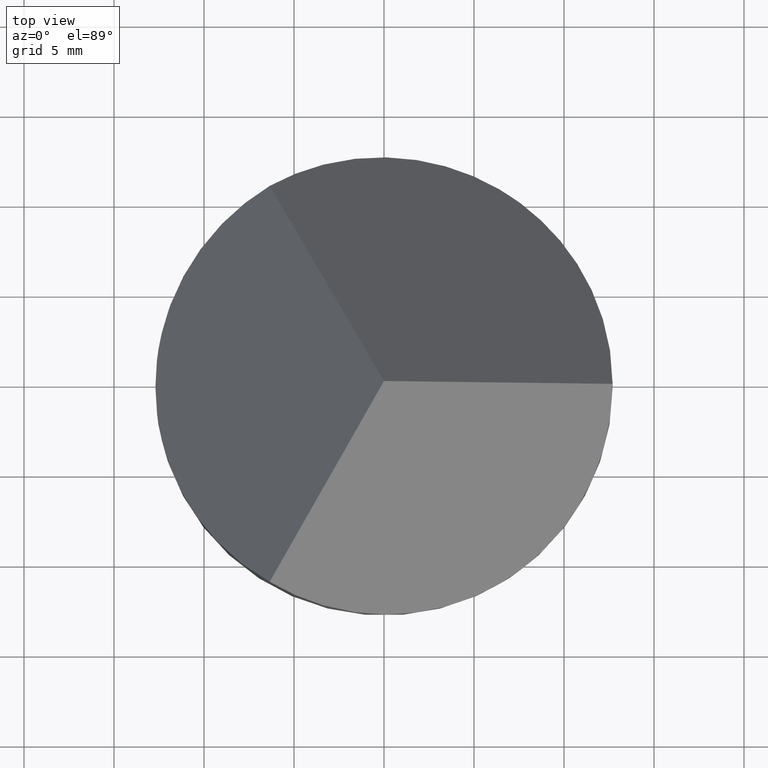
[diagram: clean part render]
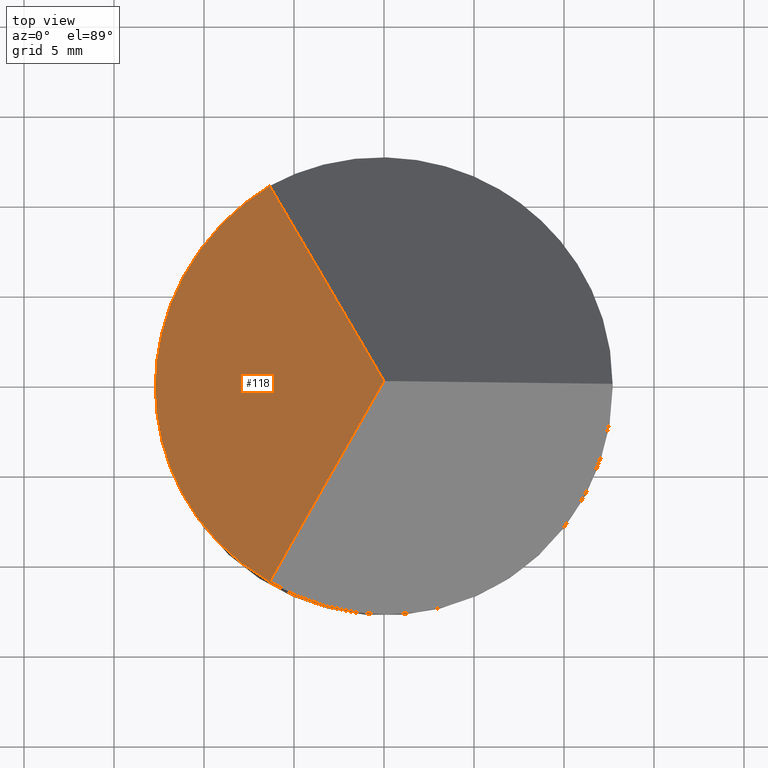
[diagram: same view with one face highlighted and labeled with its STEP entity id]
A machine part, top view. The second image highlights one B-rep face of the part: STEP entity #118.
In plain terms, the highlighted planar face has unit normal (0.8164, 0, -0.5774).
Its self-contained STEP definition (entity closure, byte-faithful):
#6 = FACE_OUTER_BOUND ( 'NONE', #30, .T. ) ;
#7 = EDGE_CURVE ( 'NONE', #67, #47, #12, .T. ) ;
#12 = LINE ( 'NONE', #14, #198 ) ;
#14 = CARTESIAN_POINT ( 'NONE',  ( -7.073520084914156000, -12.25169617543020500, 8.998609560100904400 ) ) ;
#16 = CARTESIAN_POINT ( 'NONE',  ( -6.350000000000017400, 10.99852262806236800, 10.02160896824114100 ) ) ;
#30 = EDGE_LOOP ( 'NONE', ( #227, #85, #308, #117 ) ) ;
#46 = CARTESIAN_POINT ( 'NONE',  ( 0.0000000000000000000, -24.50000000000000000, 19.00000000000000000 ) ) ;
#47 = VERTEX_POINT ( 'NONE', #306 ) ;
#57 = CARTESIAN_POINT ( 'NONE',  ( -6.350000000000013000, -10.99852262806236200, 10.02160896824114600 ) ) ;
#66 =( BOUNDED_CURVE ( )  B_SPLINE_CURVE ( 3, ( #150, #191, #291, #81 ),
 .UNSPECIFIED., .F., .F. ) 
 B_SPLINE_CURVE_WITH_KNOTS ( ( 4, 4 ),
 ( 0.0000000000000000000, 1.047197551196596500 ),
 .UNSPECIFIED. ) 
 CURVE ( )  GEOMETRIC_REPRESENTATION_ITEM ( )  RATIONAL_B_SPLINE_CURVE ( ( 1.000000000000000000, 0.9106836025229592100, 0.9106836025229592100, 1.000000000000000000 ) ) 
 REPRESENTATION_ITEM ( '' )  );
#67 = VERTEX_POINT ( 'NONE', #165 ) ;
#81 = CARTESIAN_POINT ( 'NONE',  ( -6.350000000000017400, 10.99852262806236800, 10.02160896824114100 ) ) ;
#85 = ORIENTED_EDGE ( 'NONE', *, *, #7, .T. ) ;
#89 = VECTOR ( 'NONE', #109, 1000.000000000000000 ) ;
#99 = CARTESIAN_POINT ( 'NONE',  ( -12.69999999999999900, 0.0000000000000000000, 1.043217936482335100 ) ) ;
#109 = DIRECTION ( 'NONE',  ( 0.4082765531884057200, -0.7071557336614137100, 0.5772703218305811300 ) ) ;
#117 = ORIENTED_EDGE ( 'NONE', *, *, #242, .F. ) ;
#118 = ADVANCED_FACE ( 'NONE', ( #6 ), #164, .F. ) ;
#125 = DIRECTION ( 'NONE',  ( -0.5774302165486712200, 0.0000000000000000000, -0.8164400437365592100 ) ) ;
#128 = CARTESIAN_POINT ( 'NONE',  ( -12.69999999999999900, -4.648522628062364600, 1.043217936482331700 ) ) ;
#129 = CARTESIAN_POINT ( 'NONE',  ( 7.073520084914155100, -12.25169617543019900, 29.00139043989909000 ) ) ;
#133 = AXIS2_PLACEMENT_3D ( 'NONE', #46, #139, #125 ) ;
#139 = DIRECTION ( 'NONE',  ( 0.8164400437365592100, 0.0000000000000000000, -0.5774302165486712200 ) ) ;
#150 = CARTESIAN_POINT ( 'NONE',  ( -12.69999999999999900, 0.0000000000000000000, 1.043217936482335100 ) ) ;
#152 = CARTESIAN_POINT ( 'NONE',  ( -12.69999999999999900, 0.0000000000000000000, 1.043217936482335100 ) ) ;
#164 = PLANE ( 'NONE',  #133 ) ;
#165 = CARTESIAN_POINT ( 'NONE',  ( -6.350000000000013000, -10.99852262806236200, 10.02160896824114600 ) ) ;
#175 = VERTEX_POINT ( 'NONE', #16 ) ;
#182 = DIRECTION ( 'NONE',  ( 0.4082765531884056700, 0.7071557336614138200, 0.5772703218305810200 ) ) ;
#191 = CARTESIAN_POINT ( 'NONE',  ( -12.69999999999999900, 4.648522628062364600, 1.043217936482331700 ) ) ;
#198 = VECTOR ( 'NONE', #182, 1000.000000000000000 ) ;
#220 = VERTEX_POINT ( 'NONE', #99 ) ;
#224 = LINE ( 'NONE', #129, #89 ) ;
#227 = ORIENTED_EDGE ( 'NONE', *, *, #302, .F. ) ;
#242 = EDGE_CURVE ( 'NONE', #220, #175, #66, .T. ) ;
#278 =( BOUNDED_CURVE ( )  B_SPLINE_CURVE ( 3, ( #57, #285, #128, #152 ),
 .UNSPECIFIED., .F., .T. ) 
 B_SPLINE_CURVE_WITH_KNOTS ( ( 4, 4 ),
 ( 5.235987755982989700, 6.283185307179586200 ),
 .UNSPECIFIED. ) 
 CURVE ( )  GEOMETRIC_REPRESENTATION_ITEM ( )  RATIONAL_B_SPLINE_CURVE ( ( 1.000000000000000000, 0.9106836025229592100, 0.9106836025229592100, 1.000000000000000000 ) ) 
 REPRESENTATION_ITEM ( '' )  );
#285 = CARTESIAN_POINT ( 'NONE',  ( -10.37573868596881800, -8.674261314031179300, 4.329537139216437700 ) ) ;
#288 = EDGE_CURVE ( 'NONE', #175, #47, #224, .T. ) ;
#291 = CARTESIAN_POINT ( 'NONE',  ( -10.37573868596882300, 8.674261314031175700, 4.329537139216434100 ) ) ;
#302 = EDGE_CURVE ( 'NONE', #67, #220, #278, .T. ) ;
#306 = CARTESIAN_POINT ( 'NONE',  ( 2.602085213965210600E-015, 2.022940028949129900E-016, 19.00000000000000000 ) ) ;
#308 = ORIENTED_EDGE ( 'NONE', *, *, #288, .F. ) ;